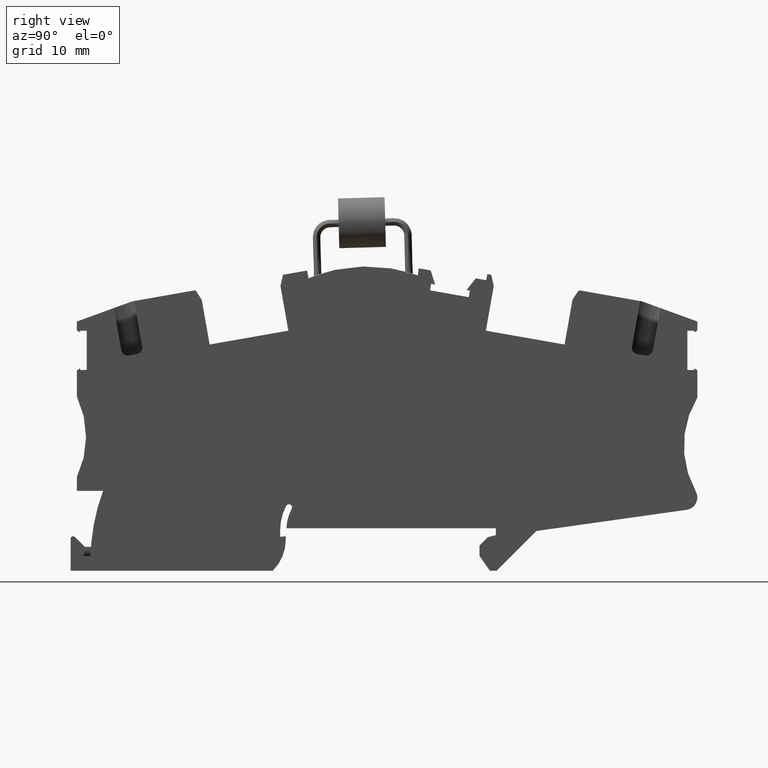
[diagram: clean part render]
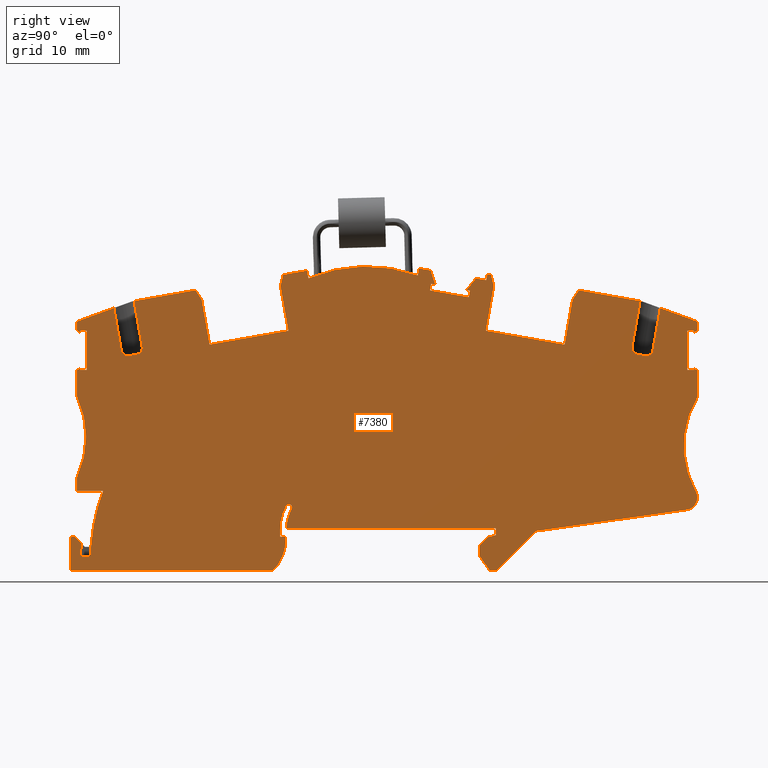
[diagram: same view with one face highlighted and labeled with its STEP entity id]
A machine part, right view. The second image highlights one B-rep face of the part: STEP entity #7380.
In plain terms, the highlighted planar face has unit normal (1, -0, -0).
Its self-contained STEP definition (entity closure, byte-faithful):
#10=CARTESIAN_POINT('',(-38.7658960341557,44.6984602097964,
-53.670000000019));
#20=DIRECTION('',(-2.33885807603283E-10,-4.12525722414922E-11,-1.));
#30=DIRECTION('',(0.984807753011676,0.173648177669947,
-2.37495990641043E-10));
#40=AXIS2_PLACEMENT_3D('',#10,#20,#30);
#50=PLANE('',#40);
#60=CARTESIAN_POINT('',(-1.08662874254151E-8,39.1457289451422,
-53.6700000088568));
#70=DIRECTION('',(-0.984807753011658,-0.173648177670052,
2.37495981214586E-10));
#80=VECTOR('',#70,1.);
#90=LINE('',#60,#80);
#100=CARTESIAN_POINT('',(-47.812676770341,30.715064012398,
-53.6699999973263));
#110=VERTEX_POINT('',#100);
#120=CARTESIAN_POINT('',(-51.9658875082973,29.9827409027146,
-53.6699999963247));
#130=VERTEX_POINT('',#120);
#140=EDGE_CURVE('',#110,#130,#90,.T.);
#150=ORIENTED_EDGE('',*,*,#140,.F.);
#160=CARTESIAN_POINT('',(-46.678304873958,-0.00463036005133455,
-53.6700000076762));
#170=DIRECTION('',(0.173648177673048,-0.98480775301113,
1.20140337217304E-14));
#180=VECTOR('',#170,1.);
#190=LINE('',#160,#180);
#200=CARTESIAN_POINT('',(-51.5838615174091,27.8161638460472,
-53.6699999963247));
#210=VERTEX_POINT('',#200);
#220=EDGE_CURVE('',#130,#210,#190,.T.);
#230=ORIENTED_EDGE('',*,*,#220,.F.);
#240=CARTESIAN_POINT('',(-63.7682777175694,19.0674495484335,
-53.6700000073275));
#250=DIRECTION('',(-1.37267895408129E-12,-2.54234290936334E-13,-1.));
#260=DIRECTION('',(0.984807753011129,0.17364817767305,
-1.39597219769755E-12));
#270=AXIS2_PLACEMENT_3D('',#240,#250,#260);
#280=CIRCLE('',#270,15.);
#290=CARTESIAN_POINT('',(-49.3264352076588,15.0136630569004,
-53.6699999963245));
#300=VERTEX_POINT('',#290);
#310=EDGE_CURVE('',#210,#300,#280,.T.);
#320=ORIENTED_EDGE('',*,*,#310,.F.);
#330=CARTESIAN_POINT('',(-46.6837406700318,0.0261975713977378,
-53.6700000072638));
#340=DIRECTION('',(0.173648177673044,-0.98480775301113,
1.20181642415673E-14));
#350=VECTOR('',#340,1.);
#360=LINE('',#330,#350);
#370=CARTESIAN_POINT('',(-48.596450918315,10.8737164282889,
-53.6699999963245));
#380=VERTEX_POINT('',#370);
#390=EDGE_CURVE('',#300,#380,#360,.T.);
#400=ORIENTED_EDGE('',*,*,#390,.F.);
#410=CARTESIAN_POINT('',(-1.08662874254151E-8,-6.81394519258256,
-53.6700000069608));
#420=DIRECTION('',(0.93969262078851,-0.342020143318521,
-2.05671563113796E-10));
#430=VECTOR('',#420,1.);
#440=LINE('',#410,#430);
#450=CARTESIAN_POINT('',(-48.0213672236098,10.6644030812094,
-53.6699999964503));
#460=VERTEX_POINT('',#450);
#470=EDGE_CURVE('',#380,#460,#440,.T.);
#480=ORIENTED_EDGE('',*,*,#470,.F.);
#490=CARTESIAN_POINT('',(-46.1409452271664,-1.49213974509621E-13,
-53.6700000073294));
#500=DIRECTION('',(-0.173648177673706,0.984807753011013,
-1.19904086659517E-14));
#510=VECTOR('',#500,1.);
#520=LINE('',#490,#510);
#530=CARTESIAN_POINT('',(-48.0686529457865,10.9325737377069,
-53.6699999964503));
#540=VERTEX_POINT('',#530);
#550=EDGE_CURVE('',#460,#540,#520,.T.);
#560=ORIENTED_EDGE('',*,*,#550,.F.);
#570=CARTESIAN_POINT('',(-1.08662874254151E-8,19.4083741767611,
-53.6700000080426));
#580=DIRECTION('',(0.984807753011099,0.17364817767322,
-2.37495981214586E-10));
#590=VECTOR('',#580,1.);
#600=LINE('',#570,#590);
#610=CARTESIAN_POINT('',(-47.0149086500645,11.1183772878173,
-53.6699999967045));
#620=VERTEX_POINT('',#610);
#630=EDGE_CURVE('',#540,#620,#600,.T.);
#640=ORIENTED_EDGE('',*,*,#630,.F.);
#650=CARTESIAN_POINT('',(-45.0544387524565,-1.49213974509621E-13,
-53.6700000073295));
#660=DIRECTION('',(0.173648177672903,-0.984807753011155,
1.19904086659517E-14));
#670=VECTOR('',#660,1.);
#680=LINE('',#650,#670);
#690=CARTESIAN_POINT('',(-45.9165839262833,4.8894682500215,
-53.6699999967044));
#700=VERTEX_POINT('',#690);
#710=EDGE_CURVE('',#620,#700,#680,.T.);
#720=ORIENTED_EDGE('',*,*,#710,.F.);
#730=CARTESIAN_POINT('',(-1.08662874254151E-8,12.9858008565598,
-53.6700000077776));
#740=DIRECTION('',(-0.984807753011159,-0.173648177672878,
2.37495981214586E-10));
#750=VECTOR('',#740,1.);
#760=LINE('',#730,#750);
#770=CARTESIAN_POINT('',(-46.9703282220044,4.70366469991167,
-53.6699999964503));
#780=VERTEX_POINT('',#770);
#790=EDGE_CURVE('',#700,#780,#760,.T.);
#800=ORIENTED_EDGE('',*,*,#790,.F.);
#810=CARTESIAN_POINT('',(-46.140945227177,-1.49213974509621E-13,
-53.6700000073294));
#820=DIRECTION('',(-0.173648177672392,0.984807753011245,
-1.19904086659517E-14));
#830=VECTOR('',#820,1.);
#840=LINE('',#810,#830);
#850=CARTESIAN_POINT('',(-47.0176139441804,4.97183535640711,
-53.6699999964503));
#860=VERTEX_POINT('',#850);
#870=EDGE_CURVE('',#780,#860,#840,.T.);
#880=ORIENTED_EDGE('',*,*,#870,.F.);
#890=CARTESIAN_POINT('',(-1.08662874254151E-8,44.4242978666089,
-53.6700000090745));
#900=DIRECTION('',(0.766044443119603,0.642787609685795,
-2.05683553522462E-10));
#910=VECTOR('',#900,1.);
#920=LINE('',#890,#910);
#930=CARTESIAN_POINT('',(-47.4864264675516,4.57845494095584,
-53.6699999963244));
#940=VERTEX_POINT('',#930);
#950=EDGE_CURVE('',#940,#860,#920,.T.);
#960=ORIENTED_EDGE('',*,*,#950,.T.);
#970=CARTESIAN_POINT('',(-46.6791213314737,-1.49213974509621E-13,
-53.6700000073293));
#980=DIRECTION('',(0.173648177673047,-0.98480775301113,
1.19904086659517E-14));
#990=VECTOR('',#980,1.);
#1000=LINE('',#970,#990);
#1010=CARTESIAN_POINT('',(-47.2352339977764,3.15387165394666,
-53.6699999963244));
#1020=VERTEX_POINT('',#1010);
#1030=EDGE_CURVE('',#940,#1020,#1000,.T.);
#1040=ORIENTED_EDGE('',*,*,#1030,.F.);
#1050=CARTESIAN_POINT('',(-1.08662874254151E-8,-5.17497453772054,
-53.6700000070284));
#1060=DIRECTION('',(0.984807753013287,-0.173648177660813,
-2.23169122071099E-10));
#1070=VECTOR('',#1060,1.);
#1080=LINE('',#1050,#1070);
#1090=CARTESIAN_POINT('',(-40.9924565558619,2.05310155641895,
-53.669999997739));
#1100=VERTEX_POINT('',#1090);
#1110=EDGE_CURVE('',#1020,#1100,#1080,.T.);
#1120=ORIENTED_EDGE('',*,*,#1110,.F.);
#1130=CARTESIAN_POINT('',(-40.9924565558555,-2.19556284264399E-9,
-53.6699999976544));
#1140=DIRECTION('',(3.10582114623145E-12,-1.,4.12525722407658E-11));
#1150=VECTOR('',#1140,1.);
#1160=LINE('',#1130,#1150);
#1170=CARTESIAN_POINT('',(-40.9924565558835,9.00911064138358,
-53.6699999985039));
#1180=VERTEX_POINT('',#1170);
#1190=EDGE_CURVE('',#1180,#1100,#1160,.T.);
#1200=ORIENTED_EDGE('',*,*,#1190,.T.);
#1210=CARTESIAN_POINT('',(-39.9924565558835,9.00911064138669,
-53.6699999982599));
#1220=DIRECTION('',(-2.4399148202882E-10,-2.07166258228259E-13,1.));
#1230=DIRECTION('',(1.,0.,2.4399148202882E-10));
#1240=AXIS2_PLACEMENT_3D('',#1210,#1220,#1230);
#1250=CIRCLE('',#1240,1.);
#1260=CARTESIAN_POINT('',(-39.9924565558866,10.0091106413867,
-53.6699999983011));
#1270=VERTEX_POINT('',#1260);
#1280=EDGE_CURVE('',#1270,#1180,#1250,.T.);
#1290=ORIENTED_EDGE('',*,*,#1280,.T.);
#1300=CARTESIAN_POINT('',(-1.08662874254151E-8,10.0091106415109,
-53.6700000076548));
#1310=DIRECTION('',(-1.,-3.10584891148603E-12,2.33885807603411E-10));
#1320=VECTOR('',#1310,1.);
#1330=LINE('',#1300,#1320);
#1340=CARTESIAN_POINT('',(-38.5924565558871,10.009110641391,
-53.6699999986286));
#1350=VERTEX_POINT('',#1340);
#1360=EDGE_CURVE('',#1350,#1270,#1330,.T.);
#1370=ORIENTED_EDGE('',*,*,#1360,.T.);
#1380=CARTESIAN_POINT('',(-38.592456555884,9.00911064139104,
-53.6699999985873));
#1390=DIRECTION('',(-1.24405358767786E-12,-2.07166257474277E-13,1.));
#1400=DIRECTION('',(1.,0.,1.24405358767786E-12));
#1410=AXIS2_PLACEMENT_3D('',#1380,#1390,#1400);
#1420=CIRCLE('',#1410,1.);
#1430=CARTESIAN_POINT('',(-37.592456555884,9.00911064139422,
-53.6699999985861));
#1440=VERTEX_POINT('',#1430);
#1450=EDGE_CURVE('',#1440,#1350,#1420,.T.);
#1460=ORIENTED_EDGE('',*,*,#1450,.T.);
#1470=CARTESIAN_POINT('',(-37.5924565558553,-2.19556284264399E-9,
-53.6699999984496));
#1480=DIRECTION('',(3.18103875604355E-12,-1.,4.12525722407482E-11));
#1490=VECTOR('',#1480,1.);
#1500=LINE('',#1470,#1490);
#1510=CARTESIAN_POINT('',(-37.5924565558601,1.50911064247332,
-53.6699999985118));
#1520=VERTEX_POINT('',#1510);
#1530=EDGE_CURVE('',#1440,#1520,#1500,.T.);
#1540=ORIENTED_EDGE('',*,*,#1530,.F.);
#1550=CARTESIAN_POINT('',(-1.08662874254151E-8,1.50911064259008,
-53.6700000073042));
#1560=DIRECTION('',(-1.,-3.10584891153142E-12,2.33885807603411E-10));
#1570=VECTOR('',#1560,1.);
#1580=LINE('',#1550,#1570);
#1590=CARTESIAN_POINT('',(-27.560956273506,1.50911064250448,
-53.6700000008581));
#1600=VERTEX_POINT('',#1590);
#1610=EDGE_CURVE('',#1600,#1520,#1580,.T.);
#1620=ORIENTED_EDGE('',*,*,#1610,.T.);
#1630=CARTESIAN_POINT('',(-28.1987771997523,-2.19556284264399E-9,
-53.6700000006466));
#1640=DIRECTION('',(0.389303997098183,0.921109330016464,
-1.29050770070194E-10));
#1650=VECTOR('',#1640,1.);
#1660=LINE('',#1630,#1650);
#1670=CARTESIAN_POINT('',(-26.8424565542009,3.20911064250277,
-53.6700000010962));
#1680=VERTEX_POINT('',#1670);
#1690=EDGE_CURVE('',#1600,#1680,#1660,.T.);
#1700=ORIENTED_EDGE('',*,*,#1690,.F.);
#1710=CARTESIAN_POINT('',(-26.8424565541907,-2.19556284264399E-9,
-53.6700000009638));
#1720=DIRECTION('',(-3.17751380766504E-12,1.,-4.12525722407491E-11));
#1730=VECTOR('',#1720,1.);
#1740=LINE('',#1710,#1730);
#1750=CARTESIAN_POINT('',(-26.8424565542241,10.5091106425107,
-53.6700000013974));
#1760=VERTEX_POINT('',#1750);
#1770=EDGE_CURVE('',#1680,#1760,#1740,.T.);
#1780=ORIENTED_EDGE('',*,*,#1770,.F.);
#1790=CARTESIAN_POINT('',(-1.08662874254151E-8,10.509110642596,
-53.6700000076754));
#1800=DIRECTION('',(-1.,-3.17751380767389E-12,2.33885807603414E-10));
#1810=VECTOR('',#1800,1.);
#1820=LINE('',#1790,#1810);
#1830=CARTESIAN_POINT('',(-13.9924565543395,10.5091106425515,
-53.6700000044028));
#1840=VERTEX_POINT('',#1830);
#1850=EDGE_CURVE('',#1840,#1760,#1820,.T.);
#1860=ORIENTED_EDGE('',*,*,#1850,.T.);
#1870=CARTESIAN_POINT('',(-13.9924565543062,-2.19556284264399E-9,
-53.6700000039693));
#1880=DIRECTION('',(3.17751380771913E-12,-1.,4.12525722407491E-11));
#1890=VECTOR('',#1880,1.);
#1900=LINE('',#1870,#1890);
#1910=CARTESIAN_POINT('',(-13.9924565543163,3.20911064257405,
-53.6700000041017));
#1920=VERTEX_POINT('',#1910);
#1930=EDGE_CURVE('',#1840,#1920,#1900,.T.);
#1940=ORIENTED_EDGE('',*,*,#1930,.F.);
#1950=CARTESIAN_POINT('',(-12.6361359087227,-2.19556284264399E-9,
-53.6700000042865));
#1960=DIRECTION('',(-0.389303997101116,0.921109330015224,
5.30545607446697E-11));
#1970=VECTOR('',#1960,1.);
#1980=LINE('',#1950,#1970);
#1990=CARTESIAN_POINT('',(-13.2739568349981,1.50911064256004,
-53.6700000041996));
#2000=VERTEX_POINT('',#1990);
#2010=EDGE_CURVE('',#2000,#1920,#1980,.T.);
#2020=ORIENTED_EDGE('',*,*,#2010,.T.);
#2030=CARTESIAN_POINT('',(-1.08662874254151E-8,1.50911064260222,
-53.6700000073042));
#2040=DIRECTION('',(-1.,-3.17773585244947E-12,2.33885807603414E-10));
#2050=VECTOR('',#2040,1.);
#2060=LINE('',#2030,#2050);
#2070=CARTESIAN_POINT('',(-9.34245630326948,1.50911064257253,
-53.6700000051191));
#2080=VERTEX_POINT('',#2070);
#2090=EDGE_CURVE('',#2080,#2000,#2060,.T.);
#2100=ORIENTED_EDGE('',*,*,#2090,.T.);
#2110=CARTESIAN_POINT('',(-9.3424563032647,1.74082970261225E-12,
-53.6700000050568));
#2120=DIRECTION('',(3.16563442129667E-12,-1.,4.12525722407518E-11));
#2130=VECTOR('',#2120,1.);
#2140=LINE('',#2110,#2130);
#2150=CARTESIAN_POINT('',(-9.34245630327349,2.77975594539307,
-53.6700000074146));
#2160=VERTEX_POINT('',#2150);
#2170=EDGE_CURVE('',#2160,#2080,#2140,.T.);
#2180=ORIENTED_EDGE('',*,*,#2170,.T.);
#2190=CARTESIAN_POINT('',(-3.93924519837834,26.1636245251627,
-53.6700000073999));
#2200=DIRECTION('',(-2.76937953640194E-13,6.91225161761385E-13,-1.));
#2210=DIRECTION('',(0.984807753011669,0.173648177669989,
-1.52700654148541E-13));
#2220=AXIS2_PLACEMENT_3D('',#2190,#2200,#2210);
#2230=CIRCLE('',#2220,24.);
#2240=CARTESIAN_POINT('',(8.05785888990866,5.37734314789833,
-53.6700000074176));
#2250=VERTEX_POINT('',#2240);
#2260=EDGE_CURVE('',#2250,#2160,#2230,.T.);
#2270=ORIENTED_EDGE('',*,*,#2260,.T.);
#2280=CARTESIAN_POINT('',(9.69503039216258,1.74082970261225E-12,
-53.6700000095094));
#2290=DIRECTION('',(0.291257484224293,-0.956644697828476,
-2.86569656893221E-11));
#2300=VECTOR('',#2290,1.);
#2310=LINE('',#2280,#2300);
#2320=CARTESIAN_POINT('',(8.38936495281031,4.28850068186818,
-53.6700000086562));
#2330=VERTEX_POINT('',#2320);
#2340=EDGE_CURVE('',#2250,#2330,#2310,.T.);
#2350=ORIENTED_EDGE('',*,*,#2340,.F.);
#2360=CARTESIAN_POINT('',(1.09876226825178,27.1543510377134,
-53.6700000086191));
#2370=DIRECTION('',(-8.84390797085604E-13,1.34168070493502E-12,-1.));
#2380=DIRECTION('',(0.984807753011669,0.173648177669989,
-6.3797450423512E-13));
#2390=AXIS2_PLACEMENT_3D('',#2360,#2370,#2380);
#2400=CIRCLE('',#2390,24.);
#2410=CARTESIAN_POINT('',(10.2406483082134,4.96367913187978,
-53.6700000086569));
#2420=VERTEX_POINT('',#2410);
#2430=EDGE_CURVE('',#2420,#2330,#2400,.T.);
#2440=ORIENTED_EDGE('',*,*,#2430,.T.);
#2450=CARTESIAN_POINT('',(9.58091659986724,1.74082970261225E-12,
-53.6700000094828));
#2460=DIRECTION('',(0.131753184337959,0.991282552260862,
-7.17081671819386E-11));
#2470=VECTOR('',#2460,1.);
#2480=LINE('',#2450,#2470);
#2490=CARTESIAN_POINT('',(10.5509024727467,7.29796457335515,
-53.6700000100107));
#2500=VERTEX_POINT('',#2490);
#2510=EDGE_CURVE('',#2420,#2500,#2480,.T.);
#2520=ORIENTED_EDGE('',*,*,#2510,.F.);
#2530=CARTESIAN_POINT('',(1.06936681731895E-11,3.45775012856029,
-53.6700000073846));
#2540=DIRECTION('',(-0.939692620783811,-0.342020143331432,
2.33889962952816E-10));
#2550=VECTOR('',#2540,1.);
#2560=LINE('',#2530,#2550);
#2570=CARTESIAN_POINT('',(9.93772207628436,7.07478516080305,
-53.6700000098581));
#2580=VERTEX_POINT('',#2570);
#2590=EDGE_CURVE('',#2500,#2580,#2560,.T.);
#2600=ORIENTED_EDGE('',*,*,#2590,.F.);
#2610=CARTESIAN_POINT('',(12.5127332886934,1.74082970261225E-12,
-53.6700000101685));
#2620=DIRECTION('',(-0.342020143331432,0.939692620783811,
4.1228936931148E-11));
#2630=VECTOR('',#2620,1.);
#2640=LINE('',#2610,#2630);
#2650=CARTESIAN_POINT('',(9.57176052291316,8.08025626505976,
-53.6700000098139));
#2660=VERTEX_POINT('',#2650);
#2670=EDGE_CURVE('',#2580,#2660,#2640,.T.);
#2680=ORIENTED_EDGE('',*,*,#2670,.F.);
#2690=CARTESIAN_POINT('',(-1.08662874254151E-8,4.59642034123985,
-53.6700000074315));
#2700=DIRECTION('',(-0.939692620785902,-0.342020143325687,
2.33889962952816E-10));
#2710=VECTOR('',#2700,1.);
#2720=LINE('',#2690,#2710);
#2730=CARTESIAN_POINT('',(15.5153163493841,10.2435336715948,
-53.6700000112933));
#2740=VERTEX_POINT('',#2730);
#2750=EDGE_CURVE('',#2740,#2660,#2720,.T.);
#2760=ORIENTED_EDGE('',*,*,#2750,.T.);
#2770=CARTESIAN_POINT('',(19.2436577003482,-2.19556284264399E-9,
-53.6700000117427));
#2780=DIRECTION('',(-0.342020143325742,0.939692620785882,
4.1228936931148E-11));
#2790=VECTOR('',#2780,1.);
#2800=LINE('',#2770,#2790);
#2810=CARTESIAN_POINT('',(15.8812779027425,9.2380625673542,
-53.6700000113374));
#2820=VERTEX_POINT('',#2810);
#2830=EDGE_CURVE('',#2820,#2740,#2800,.T.);
#2840=ORIENTED_EDGE('',*,*,#2830,.T.);
#2850=CARTESIAN_POINT('',(1.06936681731895E-11,3.45775012864883,
-53.6700000073846));
#2860=DIRECTION('',(-0.939692620785882,-0.342020143325742,
2.33889962952816E-10));
#2870=VECTOR('',#2860,1.);
#2880=LINE('',#2850,#2870);
#2890=CARTESIAN_POINT('',(15.3615786508409,9.04890750889153,
-53.6700000112081));
#2900=VERTEX_POINT('',#2890);
#2910=EDGE_CURVE('',#2820,#2900,#2880,.T.);
#2920=ORIENTED_EDGE('',*,*,#2910,.F.);
#2930=CARTESIAN_POINT('',(15.7065713873575,8.74463787230129,
-53.6700000112762));
#2940=DIRECTION('',(-0.74998420981878,0.661455731717929,
1.48123908475025E-10));
#2950=VECTOR('',#2940,1.);
#2960=LINE('',#2930,#2950);
#2970=CARTESIAN_POINT('',(17.1595084020975,7.46320620528379,
-53.6700000115631));
#2980=VERTEX_POINT('',#2970);
#2990=EDGE_CURVE('',#2980,#2900,#2960,.T.);
#3000=ORIENTED_EDGE('',*,*,#2990,.T.);
#3010=CARTESIAN_POINT('',(-1.08662874254151E-8,1.21765590826416,
-53.6700000072921));
#3020=DIRECTION('',(-0.939692620784846,-0.342020143328587,
2.33889962952816E-10));
#3030=VECTOR('',#3020,1.);
#3040=LINE('',#3010,#3030);
#3050=CARTESIAN_POINT('',(18.7625233339538,8.0466559255694,
-53.6700000119621));
#3060=VERTEX_POINT('',#3050);
#3070=EDGE_CURVE('',#3060,#2980,#3040,.T.);
#3080=ORIENTED_EDGE('',*,*,#3070,.T.);
#3090=CARTESIAN_POINT('',(21.6912665770717,-2.19556284264399E-9,
-53.6700000123152));
#3100=DIRECTION('',(-0.342020143328733,0.939692620784793,
4.1228936931148E-11));
#3110=VECTOR('',#3100,1.);
#3120=LINE('',#3090,#3110);
#3130=CARTESIAN_POINT('',(19.1045434772831,7.10696330478309,
-53.6700000120034));
#3140=VERTEX_POINT('',#3130);
#3150=EDGE_CURVE('',#3140,#3060,#3120,.T.);
#3160=ORIENTED_EDGE('',*,*,#3150,.T.);
#3170=CARTESIAN_POINT('',(-1.08662874254151E-8,0.153478135783574,
-53.6700000072482));
#3180=DIRECTION('',(-0.939692620784819,-0.342020143328663,
2.33889962952816E-10));
#3190=VECTOR('',#3180,1.);
#3200=LINE('',#3170,#3190);
#3210=CARTESIAN_POINT('',(19.6979596310718,7.32294912129705,
-53.6700000121511));
#3220=VERTEX_POINT('',#3210);
#3230=EDGE_CURVE('',#3220,#3140,#3200,.T.);
#3240=ORIENTED_EDGE('',*,*,#3230,.T.);
#3250=CARTESIAN_POINT('',(19.3255600048218,-2.19556284264399E-9,
-53.6700000117619));
#3260=DIRECTION('',(0.0507881482387546,0.998709449238605,
-5.30779586949137E-11));
#3270=VECTOR('',#3260,1.);
#3280=LINE('',#3250,#3270);
#3290=CARTESIAN_POINT('',(19.7916942716764,9.16616795362755,
-53.670000012249));
#3300=VERTEX_POINT('',#3290);
#3310=EDGE_CURVE('',#3220,#3300,#3280,.T.);
#3320=ORIENTED_EDGE('',*,*,#3310,.F.);
#3330=CARTESIAN_POINT('',(23.1279065699024,-2.19556284264399E-9,
-53.6700000126512));
#3340=DIRECTION('',(-0.34202014332852,0.939692620784871,
4.1228936931148E-11));
#3350=VECTOR('',#3340,1.);
#3360=LINE('',#3330,#3350);
#3370=CARTESIAN_POINT('',(17.2949472253745,16.0259240853403,
-53.6700000119481));
#3380=VERTEX_POINT('',#3370);
#3390=EDGE_CURVE('',#3300,#3380,#3360,.T.);
#3400=ORIENTED_EDGE('',*,*,#3390,.F.);
#3410=CARTESIAN_POINT('',(-1.08662874254151E-8,9.7310780880847,
-53.6700000076433));
#3420=DIRECTION('',(0.939692620784871,0.34202014332852,
-2.33889962952816E-10));
#3430=VECTOR('',#3420,1.);
#3440=LINE('',#3410,#3430);
#3450=CARTESIAN_POINT('',(29.3699974023974,20.4208829270889,
-53.6700000149536));
#3460=VERTEX_POINT('',#3450);
#3470=EDGE_CURVE('',#3380,#3460,#3440,.T.);
#3480=ORIENTED_EDGE('',*,*,#3470,.F.);
#3490=CARTESIAN_POINT('',(36.8025909461619,-2.19556284264399E-9,
-53.6700000158495));
#3500=DIRECTION('',(0.34202014332852,-0.939692620784871,
-4.1228936931148E-11));
#3510=VECTOR('',#3500,1.);
#3520=LINE('',#3490,#3510);
#3530=CARTESIAN_POINT('',(31.8667444487,13.5611267953473,
-53.6700000152545));
#3540=VERTEX_POINT('',#3530);
#3550=EDGE_CURVE('',#3460,#3540,#3520,.T.);
#3560=ORIENTED_EDGE('',*,*,#3550,.F.);
#3570=CARTESIAN_POINT('',(44.4734615623158,-2.19556284264399E-9,
-53.6700000176436));
#3580=DIRECTION('',(-0.680864038391012,0.732409831464518,
1.29030647277872E-10));
#3590=VECTOR('',#3580,1.);
#3600=LINE('',#3570,#3590);
#3610=CARTESIAN_POINT('',(32.8976409567888,12.4521847817048,
-53.6700000154499));
#3620=VERTEX_POINT('',#3610);
#3630=EDGE_CURVE('',#3620,#3540,#3600,.T.);
#3640=ORIENTED_EDGE('',*,*,#3630,.T.);
#3650=CARTESIAN_POINT('',(33.2638458725211,12.7926168009003,
-53.6700000071619));
#3660=DIRECTION('',(-1.24096812626944E-12,-2.06622207379402E-13,1.));
#3670=DIRECTION('',(-0.984807753011669,-0.173648177669989,
-1.25799460176809E-12));
#3680=AXIS2_PLACEMENT_3D('',#3650,#3660,#3670);
#3690=CIRCLE('',#3680,0.499999999999995);
#3700=CARTESIAN_POINT('',(33.4348559441942,12.3227704905073,
-53.6700000155702));
#3710=VERTEX_POINT('',#3700);
#3720=EDGE_CURVE('',#3620,#3710,#3690,.T.);
#3730=ORIENTED_EDGE('',*,*,#3720,.F.);
#3740=CARTESIAN_POINT('',(-1.08662874254151E-8,0.153478135769583,
-53.6700000072482));
#3750=DIRECTION('',(0.939692620784846,0.342020143328587,
-2.33889962952816E-10));
#3760=VECTOR('',#3750,1.);
#3770=LINE('',#3740,#3760);
#3780=CARTESIAN_POINT('',(42.549874355381,15.6403658769997,
-53.6700000178389));
#3790=VERTEX_POINT('',#3780);
#3800=EDGE_CURVE('',#3710,#3790,#3770,.T.);
#3810=ORIENTED_EDGE('',*,*,#3800,.F.);
#3820=CARTESIAN_POINT('',(48.2425019884961,-2.19556284264399E-9,
-53.6700000185251));
#3830=DIRECTION('',(0.342020143328596,-0.939692620784843,
-4.1228936931148E-11));
#3840=VECTOR('',#3830,1.);
#3850=LINE('',#3820,#3840);
#3860=CARTESIAN_POINT('',(39.9847232800154,22.6880605339883,
-53.6700000177621));
#3870=VERTEX_POINT('',#3860);
#3880=EDGE_CURVE('',#3870,#3790,#3850,.T.);
#3890=ORIENTED_EDGE('',*,*,#3880,.T.);
#3900=CARTESIAN_POINT('',(40.9244159008002,23.0300806773169,
-53.6700000177636));
#3910=DIRECTION('',(-1.54061357675212E-12,-2.83846243494316E-13,-1.));
#3920=DIRECTION('',(-1.,0.,1.54061357675212E-12));
#3930=AXIS2_PLACEMENT_3D('',#3900,#3910,#3920);
#3940=CIRCLE('',#3930,1.);
#3950=CARTESIAN_POINT('',(40.5823957574715,23.9697732981017,
-53.6700000177633));
#3960=VERTEX_POINT('',#3950);
#3970=EDGE_CURVE('',#3870,#3960,#3940,.T.);
#3980=ORIENTED_EDGE('',*,*,#3970,.F.);
#3990=CARTESIAN_POINT('',(-1.08662874254151E-8,9.1989892030694,
-53.6700000076214));
#4000=DIRECTION('',(0.939692620784817,0.342020143328667,
-2.33889962952816E-10));
#4010=VECTOR('',#4000,1.);
#4020=LINE('',#3990,#4010);
#4030=CARTESIAN_POINT('',(41.8979654265698,24.4486014987617,
-53.6700000180908));
#4040=VERTEX_POINT('',#4030);
#4050=EDGE_CURVE('',#3960,#4040,#4020,.T.);
#4060=ORIENTED_EDGE('',*,*,#4050,.F.);
#4070=CARTESIAN_POINT('',(42.2399855698985,23.5089088779768,
-53.670000018091));
#4080=DIRECTION('',(-2.29648580797384E-10,-8.3308356511599E-11,-1.));
#4090=DIRECTION('',(-1.,0.,2.29648580797384E-10));
#4100=AXIS2_PLACEMENT_3D('',#4070,#4080,#4090);
#4110=CIRCLE('',#4100,1.);
#4120=CARTESIAN_POINT('',(43.1796781906833,23.8509290213055,
-53.6700000183249));
#4130=VERTEX_POINT('',#4120);
#4140=EDGE_CURVE('',#4040,#4130,#4110,.T.);
#4150=ORIENTED_EDGE('',*,*,#4140,.F.);
#4160=CARTESIAN_POINT('',(51.8607064149197,-2.19556284264399E-9,
-53.6700000193714));
#4170=DIRECTION('',(0.342020143328667,-0.939692620784817,
-4.1228936931148E-11));
#4180=VECTOR('',#4170,1.);
#4190=LINE('',#4160,#4180);
#4200=CARTESIAN_POINT('',(45.5587734164417,17.3144186098668,
-53.6700000186117));
#4210=VERTEX_POINT('',#4200);
#4220=EDGE_CURVE('',#4130,#4210,#4190,.T.);
#4230=ORIENTED_EDGE('',*,*,#4220,.F.);
#4240=CARTESIAN_POINT('',(-1.08662874254151E-8,-8.9889514923432,
-53.6700000068711));
#4250=DIRECTION('',(-0.866025403784439,-0.5,2.23177309965905E-10));
#4260=VECTOR('',#4250,1.);
#4270=LINE('',#4240,#4260);
#4280=CARTESIAN_POINT('',(51.0485797764926,20.4839597896365,
-53.6700000200265));
#4290=VERTEX_POINT('',#4280);
#4300=EDGE_CURVE('',#4290,#4210,#4270,.T.);
#4310=ORIENTED_EDGE('',*,*,#4300,.T.);
#4320=CARTESIAN_POINT('',(54.6604545591527,-1.49213974509621E-13,
-53.6700000073443));
#4330=DIRECTION('',(-0.17364817766693,0.984807753012208,
-1.19904086659517E-14));
#4340=VECTOR('',#4330,1.);
#4350=LINE('',#4320,#4340);
#4360=CARTESIAN_POINT('',(50.7973873067339,21.9085430766033,
-53.6700000200265));
#4370=VERTEX_POINT('',#4360);
#4380=EDGE_CURVE('',#4290,#4370,#4350,.T.);
#4390=ORIENTED_EDGE('',*,*,#4380,.F.);
#4400=CARTESIAN_POINT('',(-1.08662874254151E-8,40.3972800382881,
-53.6700000089084));
#4410=DIRECTION('',(-0.939692620788365,0.342020143318919,
2.05671563113796E-10));
#4420=VECTOR('',#4410,1.);
#4430=LINE('',#4400,#4420);
#4440=CARTESIAN_POINT('',(50.2223036119146,22.1178564237248,
-53.6700000199006));
#4450=VERTEX_POINT('',#4440);
#4460=EDGE_CURVE('',#4370,#4450,#4430,.T.);
#4470=ORIENTED_EDGE('',*,*,#4460,.F.);
#4480=CARTESIAN_POINT('',(54.1222784548685,-1.49213974509621E-13,
-53.6700000073442));
#4490=DIRECTION('',(0.173648177667585,-0.984807753012093,
1.19904086659517E-14));
#4500=VECTOR('',#4490,1.);
#4510=LINE('',#4480,#4500);
#4520=CARTESIAN_POINT('',(50.2695893340892,21.8496857672291,
-53.6700000199006));
#4530=VERTEX_POINT('',#4520);
#4540=EDGE_CURVE('',#4450,#4530,#4510,.T.);
#4550=ORIENTED_EDGE('',*,*,#4540,.F.);
#4560=CARTESIAN_POINT('',(-1.08662874254151E-8,12.9858008565698,
-53.6700000077776));
#4570=DIRECTION('',(0.984807753012178,0.1736481776671,
-2.37495981214586E-10));
#4580=VECTOR('',#4570,1.);
#4590=LINE('',#4560,#4580);
#4600=CARTESIAN_POINT('',(49.2158450383671,21.6638822171254,
-53.6700000196465));
#4610=VERTEX_POINT('',#4600);
#4620=EDGE_CURVE('',#4610,#4530,#4590,.T.);
#4630=ORIENTED_EDGE('',*,*,#4620,.T.);
#4640=CARTESIAN_POINT('',(53.0357719801401,-1.49213974509621E-13,
-53.6700000073441));
#4650=DIRECTION('',(-0.173648177667074,0.984807753012183,
-1.19904086659517E-14));
#4660=VECTOR('',#4650,1.);
#4670=LINE('',#4640,#4660);
#4680=CARTESIAN_POINT('',(48.1175203146228,27.8927912549278,
-53.6700000196466));
#4690=VERTEX_POINT('',#4680);
#4700=EDGE_CURVE('',#4610,#4690,#4670,.T.);
#4710=ORIENTED_EDGE('',*,*,#4700,.F.);
#4720=CARTESIAN_POINT('',(-1.08662874254151E-8,19.4083741767648,
-53.6700000080426));
#4730=DIRECTION('',(-0.984807753012239,-0.173648177666757,
2.37495981214586E-10));
#4740=VECTOR('',#4730,1.);
#4750=LINE('',#4720,#4740);
#4760=CARTESIAN_POINT('',(49.1712646103461,28.0785948050312,
-53.6700000199007));
#4770=VERTEX_POINT('',#4760);
#4780=EDGE_CURVE('',#4770,#4690,#4750,.T.);
#4790=ORIENTED_EDGE('',*,*,#4780,.T.);
#4800=CARTESIAN_POINT('',(54.1222784548342,-1.49213974509621E-13,
-53.6700000073442));
#4810=DIRECTION('',(0.173648177666272,-0.984807753012324,
1.19904086659517E-14));
#4820=VECTOR('',#4810,1.);
#4830=LINE('',#4800,#4820);
#4840=CARTESIAN_POINT('',(49.2185503325207,27.8104241485333,
-53.6700000199007));
#4850=VERTEX_POINT('',#4840);
#4860=EDGE_CURVE('',#4770,#4850,#4830,.T.);
#4870=ORIENTED_EDGE('',*,*,#4860,.F.);
#4880=CARTESIAN_POINT('',(-1.08662874254151E-8,-13.4888432915661,
-53.6700000066855));
#4890=DIRECTION('',(-0.766044443119875,-0.64278760968547,
2.05683553522462E-10));
#4900=VECTOR('',#4890,1.);
#4910=LINE('',#4880,#4900);
#4920=CARTESIAN_POINT('',(49.6873628557989,28.2038045639062,
-53.6700000200266));
#4930=VERTEX_POINT('',#4920);
#4940=EDGE_CURVE('',#4930,#4850,#4910,.T.);
#4950=ORIENTED_EDGE('',*,*,#4940,.T.);
#4960=CARTESIAN_POINT('',(54.6604545590443,-1.49213974509621E-13,
-53.6700000073443));
#4970=DIRECTION('',(-0.173648177666934,0.984807753012207,
-1.19904086659517E-14));
#4980=VECTOR('',#4970,1.);
#4990=LINE('',#4960,#4980);
#5000=CARTESIAN_POINT('',(48.9282052913989,32.5092010571136,
-53.6700000200266));
#5010=VERTEX_POINT('',#5000);
#5020=EDGE_CURVE('',#4930,#5010,#4990,.T.);
#5030=ORIENTED_EDGE('',*,*,#5020,.F.);
#5040=CARTESIAN_POINT('',(60.2093480290376,42.395343810116,
-53.6700000073468));
#5050=DIRECTION('',(1.24156444385934E-12,2.06727354259574E-13,-1.));
#5060=DIRECTION('',(0.984807753012747,0.173648177663873,
1.25860011851808E-12));
#5070=AXIS2_PLACEMENT_3D('',#5040,#5050,#5060);
#5080=CIRCLE('',#5070,14.9999999999975);
#5090=CARTESIAN_POINT('',(46.0515297055906,47.3507630981472,
-53.6700000195496));
#5100=VERTEX_POINT('',#5090);
#5110=EDGE_CURVE('',#5010,#5100,#5080,.T.);
#5120=ORIENTED_EDGE('',*,*,#5110,.F.);
#5130=CARTESIAN_POINT('',(44.1638205957973,48.0114856698848,
-53.6700000073446));
#5140=DIRECTION('',(1.24156444385934E-12,2.06727354259574E-13,-1.));
#5150=DIRECTION('',(-1.,0.,-1.24156444385934E-12));
#5160=AXIS2_PLACEMENT_3D('',#5130,#5140,#5150);
#5170=CIRCLE('',#5160,2.);
#5180=CARTESIAN_POINT('',(44.0947777730223,50.0102935867751,
-53.6700000196181));
#5190=VERTEX_POINT('',#5180);
#5200=EDGE_CURVE('',#5190,#5100,#5170,.T.);
#5210=ORIENTED_EDGE('',*,*,#5200,.T.);
#5220=CARTESIAN_POINT('',(-1.08662874254151E-8,48.4871717789647,
-53.6700000092421));
#5230=DIRECTION('',(0.999403958445139,0.0345214113875409,
-2.35170497658865E-10));
#5240=VECTOR('',#5230,1.);
#5250=LINE('',#5220,#5240);
#5260=CARTESIAN_POINT('',(19.6913747051219,49.167351241546,
-53.6700000138757));
#5270=VERTEX_POINT('',#5260);
#5280=EDGE_CURVE('',#5270,#5190,#5250,.T.);
#5290=ORIENTED_EDGE('',*,*,#5280,.T.);
#5300=CARTESIAN_POINT('',(-1.08662874254151E-8,62.9554002553019,
-53.670000009839));
#5310=DIRECTION('',(0.819152044290773,-0.573576436348502,
-1.67926533789498E-10));
#5320=VECTOR('',#5310,1.);
#5330=LINE('',#5300,#5320);
#5340=CARTESIAN_POINT('',(12.2772567487432,54.358772523744,
-53.6700000123558));
#5350=VERTEX_POINT('',#5340);
#5360=EDGE_CURVE('',#5350,#5270,#5330,.T.);
#5370=ORIENTED_EDGE('',*,*,#5360,.T.);
#5380=CARTESIAN_POINT('',(-1.08662874254151E-8,52.1939609079002,
-53.670000009395));
#5390=DIRECTION('',(0.984807753011669,0.173648177669989,
-2.37495981214586E-10));
#5400=VECTOR('',#5390,1.);
#5410=LINE('',#5380,#5400);
#5420=CARTESIAN_POINT('',(11.2240029775884,54.1730554663532,
-53.6700000121018));
#5430=VERTEX_POINT('',#5420);
#5440=EDGE_CURVE('',#5430,#5350,#5410,.T.);
#5450=ORIENTED_EDGE('',*,*,#5440,.T.);
#5460=CARTESIAN_POINT('',(-14.0373076528465,-2.19556284264399E-9,
-53.6700000039588));
#5470=DIRECTION('',(-0.422618261737884,-0.906307787037963,
1.3623194239365E-10));
#5480=VECTOR('',#5470,1.);
#5490=LINE('',#5460,#5480);
#5500=CARTESIAN_POINT('',(9.98579105436657,51.5177014279249,
-53.6700000117027));
#5510=VERTEX_POINT('',#5500);
#5520=EDGE_CURVE('',#5430,#5510,#5490,.T.);
#5530=ORIENTED_EDGE('',*,*,#5520,.F.);
#5540=CARTESIAN_POINT('',(19.0705682577637,-0.00463036004303906,
-53.6700000071821));
#5550=DIRECTION('',(0.173648177669989,-0.984807753011669,
1.20001559364908E-14));
#5560=VECTOR('',#5550,1.);
#5570=LINE('',#5540,#5560);
#5580=CARTESIAN_POINT('',(10.272310547524,49.8927686354448,
-53.6700000117027));
#5590=VERTEX_POINT('',#5580);
#5600=EDGE_CURVE('',#5510,#5590,#5570,.T.);
#5610=ORIENTED_EDGE('',*,*,#5600,.F.);
#5620=CARTESIAN_POINT('',(-1.08662874254151E-8,57.0855179232133,
-53.6700000095968));
#5630=DIRECTION('',(-0.819152044290773,0.573576436348502,
1.67926533789498E-10));
#5640=VECTOR('',#5630,1.);
#5650=LINE('',#5620,#5640);
#5660=CARTESIAN_POINT('',(11.8388625448746,48.7958571179097,
-53.6700000120238));
#5670=VERTEX_POINT('',#5660);
#5680=EDGE_CURVE('',#5670,#5590,#5650,.T.);
#5690=ORIENTED_EDGE('',*,*,#5680,.T.);
#5700=CARTESIAN_POINT('',(-1.08662874254151E-8,49.8316233805409,
-53.6700000092976));
#5710=DIRECTION('',(-0.99619469809202,0.0871557427445192,
2.29400408391367E-10));
#5720=VECTOR('',#5710,1.);
#5730=LINE('',#5700,#5720);
#5740=CARTESIAN_POINT('',(13.1772529950435,48.6787631261528,
-53.670000012332));
#5750=VERTEX_POINT('',#5740);
#5760=EDGE_CURVE('',#5750,#5670,#5730,.T.);
#5770=ORIENTED_EDGE('',*,*,#5760,.T.);
#5780=CARTESIAN_POINT('',(21.7614487792625,-0.00463036004303921,
-53.6700000071787));
#5790=DIRECTION('',(-0.173648177669989,0.984807753011669,
-1.20001559364908E-14));
#5800=VECTOR('',#5790,1.);
#5810=LINE('',#5780,#5800);
#5820=CARTESIAN_POINT('',(13.3682659904803,47.5954745978407,
-53.670000012332));
#5830=VERTEX_POINT('',#5820);
#5840=EDGE_CURVE('',#5830,#5750,#5810,.T.);
#5850=ORIENTED_EDGE('',*,*,#5840,.T.);
#5860=CARTESIAN_POINT('',(-1.08662874254151E-8,45.2382886164728,
-53.6700000091081));
#5870=DIRECTION('',(0.984807753011669,0.173648177669989,
-2.37495981214586E-10));
#5880=VECTOR('',#5870,1.);
#5890=LINE('',#5860,#5880);
#5900=CARTESIAN_POINT('',(-19.8136819879401,41.7446018966742,
-53.670000006061));
#5910=VERTEX_POINT('',#5900);
#5920=EDGE_CURVE('',#5910,#5830,#5890,.T.);
#5930=ORIENTED_EDGE('',*,*,#5920,.T.);
#5940=CARTESIAN_POINT('',(-12.6827531423195,43.3066050332574,
-53.6700000072126));
#5950=DIRECTION('',(-1.48295498895472E-13,-3.83424530500997E-14,-1.));
#5960=DIRECTION('',(0.984807753011669,0.173648177669989,
-1.52700654148541E-13));
#5970=AXIS2_PLACEMENT_3D('',#5940,#5950,#5960);
#5980=CIRCLE('',#5970,7.3);
#5990=CARTESIAN_POINT('',(-18.4429710412447,38.8221998601155,
-53.670000004425));
#6000=VERTEX_POINT('',#5990);
#6010=EDGE_CURVE('',#6000,#5910,#5980,.T.);
#6020=ORIENTED_EDGE('',*,*,#6010,.T.);
#6030=CARTESIAN_POINT('',(-18.8375065137736,38.5150488208589,
-53.6700000072212));
#6040=DIRECTION('',(-1.48295498895472E-13,-3.83424530500997E-14,-1.));
#6050=DIRECTION('',(0.984807753011669,0.173648177669989,
-1.52700654148541E-13));
#6060=AXIS2_PLACEMENT_3D('',#6030,#6040,#6050);
#6070=CIRCLE('',#6060,0.5);
#6080=CARTESIAN_POINT('',(-19.2320419863024,38.2078977816023,
-53.6700000044249));
#6090=VERTEX_POINT('',#6080);
#6100=EDGE_CURVE('',#6000,#6090,#6070,.T.);
#6110=ORIENTED_EDGE('',*,*,#6100,.F.);
#6120=CARTESIAN_POINT('',(-12.6827531423195,43.3066050332574,
-53.6700000072126));
#6130=DIRECTION('',(-1.48295498895472E-13,-3.83424530500997E-14,-1.));
#6140=DIRECTION('',(0.984807753011669,0.173648177669989,
-1.52700654148541E-13));
#6150=AXIS2_PLACEMENT_3D('',#6120,#6130,#6140);
#6160=CIRCLE('',#6150,8.3);
#6170=CARTESIAN_POINT('',(-20.8566574923164,41.8653251585966,
-53.6700000040909));
#6180=VERTEX_POINT('',#6170);
#6190=EDGE_CURVE('',#6090,#6180,#6160,.T.);
#6200=ORIENTED_EDGE('',*,*,#6190,.F.);
#6210=CARTESIAN_POINT('',(-13.4738546531829,-0.00463036004303725,
-53.6700000072225));
#6220=DIRECTION('',(0.173648177669989,-0.984807753011669,
1.20001559364908E-14));
#6230=VECTOR('',#6220,1.);
#6240=LINE('',#6210,#6230);
#6250=CARTESIAN_POINT('',(-21.0439786922746,42.9276764743291,
-53.6700000040909));
#6260=VERTEX_POINT('',#6250);
#6270=EDGE_CURVE('',#6260,#6180,#6240,.T.);
#6280=ORIENTED_EDGE('',*,*,#6270,.T.);
#6290=CARTESIAN_POINT('',(-1.08662874254151E-8,44.7687860444994,
-53.6700000090887));
#6300=DIRECTION('',(0.996194698091475,0.0871557427507483,
-2.36591204960668E-10));
#6310=VECTOR('',#6300,1.);
#6320=LINE('',#6290,#6310);
#6330=CARTESIAN_POINT('',(-20.1439786922748,43.0064162715053,
-53.6700000043046));
#6340=VERTEX_POINT('',#6330);
#6350=EDGE_CURVE('',#6260,#6340,#6320,.T.);
#6360=ORIENTED_EDGE('',*,*,#6350,.F.);
#6370=CARTESIAN_POINT('',(-12.5607871598912,-1.49213974509621E-13,
-53.6700000073344));
#6380=DIRECTION('',(0.173648177669989,-0.984807753011669,
1.19904086659517E-14));
#6390=VECTOR('',#6380,1.);
#6400=LINE('',#6370,#6390);
#6410=CARTESIAN_POINT('',(-20.2406079985251,43.554428299275,
-53.6700000043046));
#6420=VERTEX_POINT('',#6410);
#6430=EDGE_CURVE('',#6420,#6340,#6400,.T.);
#6440=ORIENTED_EDGE('',*,*,#6430,.T.);
#6450=CARTESIAN_POINT('',(-27.1342622696068,42.338891055585,
-53.6700000026421));
#6460=DIRECTION('',(-2.33885807603283E-10,-4.12525722414922E-11,-1.));
#6470=DIRECTION('',(1.,2.77555756156289E-17,-2.33885807603283E-10));
#6480=AXIS2_PLACEMENT_3D('',#6450,#6460,#6470);
#6490=CIRCLE('',#6480,7.);
#6500=CARTESIAN_POINT('',(-23.1703368668329,48.1084053680072,
-53.6700000038073));
#6510=VERTEX_POINT('',#6500);
#6520=EDGE_CURVE('',#6510,#6420,#6490,.T.);
#6530=ORIENTED_EDGE('',*,*,#6520,.T.);
#6540=CARTESIAN_POINT('',(-1.08662874254151E-8,52.1939609078931,
-53.670000009395));
#6550=DIRECTION('',(0.984807753011661,0.173648177670031,
-2.37495981214586E-10));
#6560=VECTOR('',#6550,1.);
#6570=LINE('',#6540,#6560);
#6580=CARTESIAN_POINT('',(-55.1820743443006,42.4638723512697,
-53.6699999960873));
#6590=VERTEX_POINT('',#6580);
#6600=EDGE_CURVE('',#6590,#6510,#6570,.T.);
#6610=ORIENTED_EDGE('',*,*,#6600,.T.);
#6620=CARTESIAN_POINT('',(-47.6937314858662,-0.00463036005133449,
-53.6700000076775));
#6630=DIRECTION('',(0.173648177670031,-0.984807753011662,
1.20140337242633E-14));
#6640=VECTOR('',#6630,1.);
#6650=LINE('',#6620,#6640);
#6660=CARTESIAN_POINT('',(-54.2865521496869,37.3851136099866,
-53.6699999961822));
#6670=VERTEX_POINT('',#6660);
#6680=EDGE_CURVE('',#6590,#6670,#6650,.T.);
#6690=ORIENTED_EDGE('',*,*,#6680,.F.);
#6700=CARTESIAN_POINT('',(-53.8926290484909,37.4545728811037,
-53.669999999517));
#6710=DIRECTION('',(-1.48295498895472E-13,-3.83424530500996E-14,-1.));
#6720=DIRECTION('',(-1.,0.,1.48295498895472E-13));
#6730=AXIS2_PLACEMENT_3D('',#6700,#6710,#6720);
#6740=CIRCLE('',#6730,0.4);
#6750=CARTESIAN_POINT('',(-53.5649682314735,37.2251423055663,
-53.6699999961823));
#6760=VERTEX_POINT('',#6750);
#6770=EDGE_CURVE('',#6760,#6670,#6740,.T.);
#6780=ORIENTED_EDGE('',*,*,#6770,.T.);
#6790=CARTESIAN_POINT('',(-79.6302934861228,-2.19556284264399E-9,
-53.6699999886175));
#6800=DIRECTION('',(0.573576436348467,0.819152044290798,
-1.67943492446199E-10));
#6810=VECTOR('',#6800,1.);
#6820=LINE('',#6790,#6810);
#6830=CARTESIAN_POINT('',(-52.8726002264523,38.2139462940453,
-53.66999999646));
#6840=VERTEX_POINT('',#6830);
#6850=EDGE_CURVE('',#6760,#6840,#6820,.T.);
#6860=ORIENTED_EDGE('',*,*,#6850,.F.);
#6870=CARTESIAN_POINT('',(-53.6098370663141,38.7301650867588,
-53.6700000073297));
#6880=DIRECTION('',(-2.16143131249961E-10,-8.03836397806063E-13,-1.));
#6890=DIRECTION('',(1.,2.18867576825201E-29,-2.16143131249961E-10));
#6900=AXIS2_PLACEMENT_3D('',#6870,#6880,#6890);
#6910=CIRCLE('',#6900,0.900000000000001);
#6920=CARTESIAN_POINT('',(-53.1354391533389,39.4949831175118,
-53.6699999964436));
#6930=VERTEX_POINT('',#6920);
#6940=EDGE_CURVE('',#6930,#6840,#6910,.T.);
#6950=ORIENTED_EDGE('',*,*,#6940,.T.);
#6960=CARTESIAN_POINT('',(-46.171408026968,-1.49213974509621E-13,
-53.6700000073294));
#6970=DIRECTION('',(0.173648177670031,-0.984807753011661,
1.19904086659517E-14));
#6980=VECTOR('',#6970,1.);
#6990=LINE('',#6960,#6980);
#7000=CARTESIAN_POINT('',(-53.2967894987792,40.4100463981795,
-53.6699999964436));
#7010=VERTEX_POINT('',#7000);
#7020=EDGE_CURVE('',#7010,#6930,#6990,.T.);
#7030=ORIENTED_EDGE('',*,*,#7020,.T.);
#7040=CARTESIAN_POINT('',(-1.08662874254151E-8,49.8077083702111,
-53.6700000092966));
#7050=DIRECTION('',(-0.984807753011661,-0.173648177670035,
2.37495981214586E-10));
#7060=VECTOR('',#7050,1.);
#7070=LINE('',#7040,#7060);
#7080=CARTESIAN_POINT('',(-51.6150989793894,40.706573809955,
-53.669999997661));
#7090=VERTEX_POINT('',#7080);
#7100=EDGE_CURVE('',#7090,#7010,#7070,.T.);
#7110=ORIENTED_EDGE('',*,*,#7100,.T.);
#7120=CARTESIAN_POINT('',(-20.131841171354,46.9687202305347,
-53.670000007335));
#7130=DIRECTION('',(-2.16143131249961E-10,-8.03836397806063E-13,-1.));
#7140=DIRECTION('',(1.,2.18867576825201E-29,-2.16143131249961E-10));
#7150=AXIS2_PLACEMENT_3D('',#7120,#7130,#7140);
#7160=CIRCLE('',#7150,32.1);
#7170=CARTESIAN_POINT('',(-51.2876518651571,39.2404953365566,
-53.6699999977306));
#7180=VERTEX_POINT('',#7170);
#7190=EDGE_CURVE('',#7180,#7090,#7160,.T.);
#7200=ORIENTED_EDGE('',*,*,#7190,.T.);
#7210=CARTESIAN_POINT('',(-41.1085012337194,-2.19556284264399E-9,
-53.6699999976272));
#7220=DIRECTION('',(0.25109364827411,-0.96796279876677,
-1.87962978515088E-11));
#7230=VECTOR('',#7220,1.);
#7240=LINE('',#7210,#7230);
#7250=CARTESIAN_POINT('',(-51.1157069655306,38.5776499486477,
-53.6699999968781));
#7260=VERTEX_POINT('',#7250);
#7270=EDGE_CURVE('',#7180,#7260,#7240,.T.);
#7280=ORIENTED_EDGE('',*,*,#7270,.F.);
#7290=CARTESIAN_POINT('',(-20.1318411698312,46.9687202305401,
-53.6700000044709));
#7300=DIRECTION('',(-1.48295498895472E-13,-3.83424530500996E-14,-1.));
#7310=DIRECTION('',(0.984807753011661,0.173648177670031,
-1.52700654148541E-13));
#7320=AXIS2_PLACEMENT_3D('',#7290,#7300,#7310);
#7330=CIRCLE('',#7320,32.1);
#7340=EDGE_CURVE('',#110,#7260,#7330,.T.);
#7350=ORIENTED_EDGE('',*,*,#7340,.T.);
#7360=EDGE_LOOP('',(#7350,#7280,#7200,#7110,#7030,#6950,#6860,#6780,
#6690,#6610,#6530,#6440,#6360,#6280,#6200,#6110,#6020,#5930,#5850,#5770,
#5690,#5610,#5530,#5450,#5370,#5290,#5210,#5120,#5030,#4950,#4870,#4790,
#4710,#4630,#4550,#4470,#4390,#4310,#4230,#4150,#4060,#3980,#3890,#3810,
#3730,#3640,#3560,#3480,#3400,#3320,#3240,#3160,#3080,#3000,#2920,#2840,
#2760,#2680,#2600,#2520,#2440,#2350,#2270,#2180,#2100,#2020,#1940,#1860,
#1780,#1700,#1620,#1540,#1460,#1370,#1290,#1200,#1120,#1040,#960,#880,
#800,#720,#640,#560,#480,#400,#320,#230,#150));
#7370=FACE_OUTER_BOUND('',#7360,.T.);
#7380=ADVANCED_FACE('',(#7370),#50,.T.);